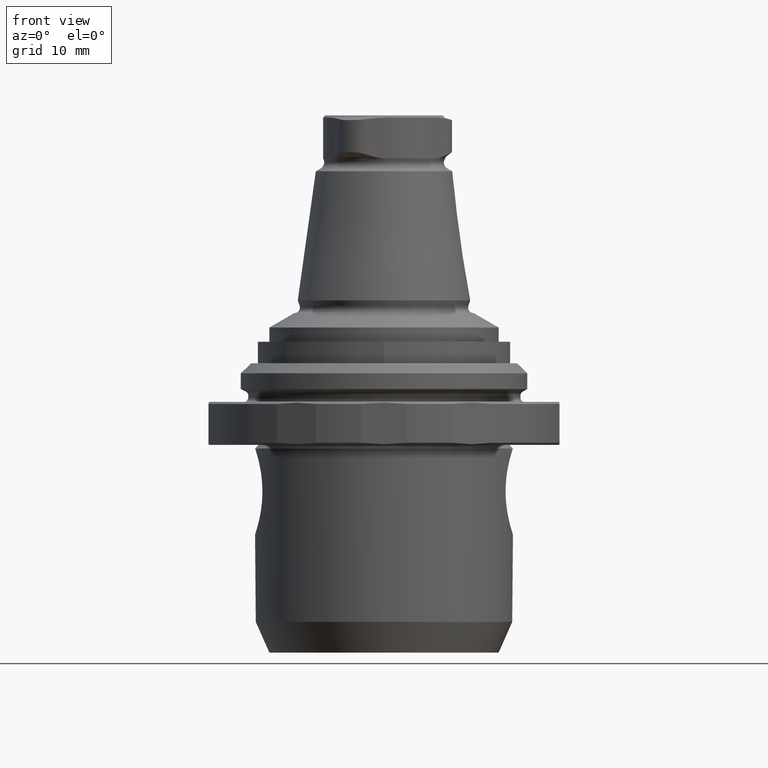
[diagram: clean part render]
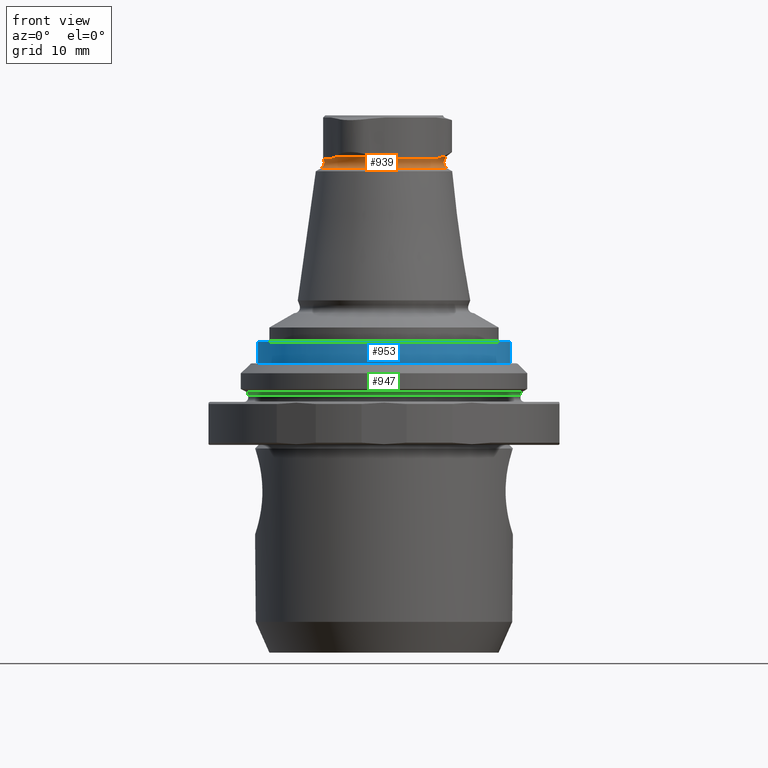
[diagram: same view with three faces highlighted in distinct colors, each labeled with its STEP entity id]
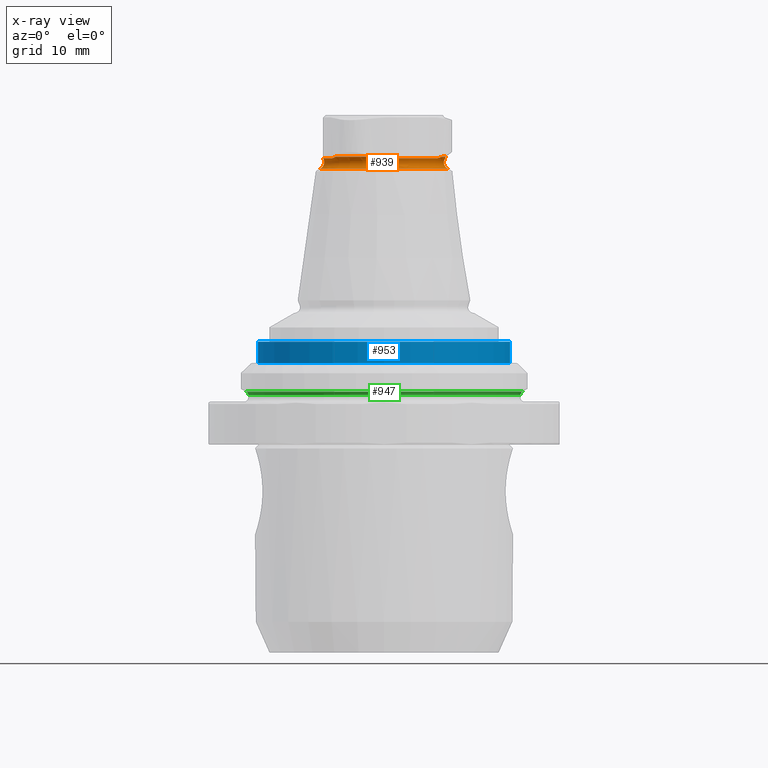
[diagram: x-ray of the same camera — body ghosted, the three highlighted faces saturated]
A machine part, front view with three faces highlighted in distinct colors.
The next image is the same camera in x-ray (body ghosted, the three faces saturated) — at least one of them is partly hidden behind the body in this view.
Their STEP definitions:

[orange] entity #939 — the highlighted toroidal blend (fillet) surface has major radius 9.35 mm and minor (blend) radius 1 mm.
#20=TOROIDAL_SURFACE('',#1040,9.35,1.);
#114=B_SPLINE_CURVE_WITH_KNOTS('',3,(#1562,#1563,#1564,#1565),
 .UNSPECIFIED.,.F.,.F.,(4,4),(8.75717671022028E-7,0.00148854459690247),
 .UNSPECIFIED.);
#116=B_SPLINE_CURVE_WITH_KNOTS('',3,(#1576,#1577,#1578,#1579),
 .UNSPECIFIED.,.F.,.F.,(4,4),(1.97091367671807E-7,0.00148786597047923),
 .UNSPECIFIED.);
#118=B_SPLINE_CURVE_WITH_KNOTS('',3,(#1590,#1591,#1592,#1593),
 .UNSPECIFIED.,.F.,.F.,(4,4),(8.75717646699766E-7,0.00148854459689308),
 .UNSPECIFIED.);
#120=B_SPLINE_CURVE_WITH_KNOTS('',3,(#1604,#1605,#1606,#1607),
 .UNSPECIFIED.,.F.,.F.,(4,4),(2.29036980225932E-7,0.00148789791622652),
 .UNSPECIFIED.);
#122=B_SPLINE_CURVE_WITH_KNOTS('',3,(#1618,#1619,#1620,#1621),
 .UNSPECIFIED.,.F.,.F.,(4,4),(8.75717915843446E-7,0.00148854459702719),
 .UNSPECIFIED.);
#124=B_SPLINE_CURVE_WITH_KNOTS('',3,(#1632,#1633,#1634,#1635),
 .UNSPECIFIED.,.F.,.F.,(4,4),(2.26144285588454E-7,0.00148789502351704),
 .UNSPECIFIED.);
#275=ORIENTED_EDGE('',*,*,#485,.F.);
#276=ORIENTED_EDGE('',*,*,#484,.T.);
#277=ORIENTED_EDGE('',*,*,#483,.T.);
#278=ORIENTED_EDGE('',*,*,#480,.T.);
#279=ORIENTED_EDGE('',*,*,#479,.T.);
#280=ORIENTED_EDGE('',*,*,#477,.T.);
#281=ORIENTED_EDGE('',*,*,#475,.T.);
#282=ORIENTED_EDGE('',*,*,#472,.T.);
#283=ORIENTED_EDGE('',*,*,#471,.T.);
#284=ORIENTED_EDGE('',*,*,#469,.T.);
#285=ORIENTED_EDGE('',*,*,#467,.T.);
#286=ORIENTED_EDGE('',*,*,#464,.T.);
#287=ORIENTED_EDGE('',*,*,#463,.T.);
#463=EDGE_CURVE('',#581,#582,#114,.T.);
#464=EDGE_CURVE('',#583,#581,#660,.T.);
#467=EDGE_CURVE('',#584,#583,#116,.T.);
#469=EDGE_CURVE('',#585,#584,#661,.T.);
#471=EDGE_CURVE('',#586,#585,#118,.T.);
#472=EDGE_CURVE('',#587,#586,#662,.T.);
#475=EDGE_CURVE('',#588,#587,#120,.T.);
#477=EDGE_CURVE('',#589,#588,#663,.T.);
#479=EDGE_CURVE('',#590,#589,#122,.T.);
#480=EDGE_CURVE('',#591,#590,#664,.T.);
#483=EDGE_CURVE('',#592,#591,#124,.T.);
#484=EDGE_CURVE('',#582,#592,#665,.T.);
#485=EDGE_CURVE('',#593,#593,#666,.T.);
#581=VERTEX_POINT('',#1559);
#582=VERTEX_POINT('',#1561);
#583=VERTEX_POINT('',#1568);
#584=VERTEX_POINT('',#1575);
#585=VERTEX_POINT('',#1582);
#586=VERTEX_POINT('',#1589);
#587=VERTEX_POINT('',#1596);
#588=VERTEX_POINT('',#1603);
#589=VERTEX_POINT('',#1610);
#590=VERTEX_POINT('',#1617);
#591=VERTEX_POINT('',#1624);
#592=VERTEX_POINT('',#1631);
#593=VERTEX_POINT('',#1640);
#660=CIRCLE('',#1024,8.70721239031346);
#661=CIRCLE('',#1027,8.5);
#662=CIRCLE('',#1030,8.70721239031346);
#663=CIRCLE('',#1033,8.5);
#664=CIRCLE('',#1036,8.70721239031346);
#665=CIRCLE('',#1039,8.5);
#666=CIRCLE('',#1041,8.85);
#737=EDGE_LOOP('',(#275));
#738=EDGE_LOOP('',(#276,#277,#278,#279,#280,#281,#282,#283,#284,#285,#286,
#287));
#833=FACE_BOUND('',#737,.T.);
#834=FACE_BOUND('',#738,.T.);
#939=ADVANCED_FACE('',(#833,#834),#20,.F.);
#1024=AXIS2_PLACEMENT_3D('',#1567,#1190,#1191);
#1027=AXIS2_PLACEMENT_3D('',#1583,#1198,#1199);
#1030=AXIS2_PLACEMENT_3D('',#1595,#1204,#1205);
#1033=AXIS2_PLACEMENT_3D('',#1611,#1212,#1213);
#1036=AXIS2_PLACEMENT_3D('',#1623,#1218,#1219);
#1039=AXIS2_PLACEMENT_3D('',#1637,#1225,#1226);
#1040=AXIS2_PLACEMENT_3D('',#1638,#1227,#1228);
#1041=AXIS2_PLACEMENT_3D('',#1639,#1229,#1230);
#1190=DIRECTION('',(1.22464605849178E-16,1.51929083932157E-64,-1.));
#1191=DIRECTION('',(-1.,6.12303176911188E-17,-1.22464605849178E-16));
#1198=DIRECTION('',(1.22464605849178E-16,1.51929083932157E-64,-1.));
#1199=DIRECTION('',(-1.,6.12303176911188E-17,-1.22464605849178E-16));
#1204=DIRECTION('',(1.22464605849178E-16,1.51929083932157E-64,-1.));
#1205=DIRECTION('',(-1.,6.12303176911188E-17,-1.22464605849178E-16));
#1212=DIRECTION('',(1.22464605849178E-16,1.51929083932157E-64,-1.));
#1213=DIRECTION('',(-1.,6.12303176911188E-17,-1.22464605849178E-16));
#1218=DIRECTION('',(1.22464605849178E-16,1.51929083932157E-64,-1.));
#1219=DIRECTION('',(-1.,6.12303176911188E-17,-1.22464605849178E-16));
#1225=DIRECTION('',(1.22464605849178E-16,1.51929083932157E-64,-1.));
#1226=DIRECTION('',(-1.,6.12303176911188E-17,-1.22464605849178E-16));
#1227=DIRECTION('',(1.22464605849178E-16,1.51929083932157E-64,-1.));
#1228=DIRECTION('',(-1.,6.12303176911188E-17,-1.22464605849178E-16));
#1229=DIRECTION('',(1.22464605849178E-16,1.51929083932157E-64,-1.));
#1230=DIRECTION('',(-1.,6.12303176911188E-17,-1.22464605849178E-16));
#1559=CARTESIAN_POINT('',(-6.76089764728869,-5.48687621629234,23.2291441200677));
#1561=CARTESIAN_POINT('',(-7.40758513182767,-4.16865476079823,22.9898823645922));
#1562=CARTESIAN_POINT('',(-6.76089764728869,-5.48687621629234,23.2291441200677));
#1563=CARTESIAN_POINT('',(-6.94947802342285,-5.0403146234025,23.1158866888435));
#1564=CARTESIAN_POINT('',(-7.16078347826903,-4.60721452751429,22.9898823645921));
#1565=CARTESIAN_POINT('',(-7.40758513182809,-4.16865476079844,22.9898823645921));
#1567=CARTESIAN_POINT('',(-2.84474797887784E-15,-3.52918258668994E-63,23.2291441200677));
#1568=CARTESIAN_POINT('',(-1.37132536708762,-8.59854722308427,23.2291441200677));
#1575=CARTESIAN_POINT('',(0.0936316434549361,-8.49948428525774,22.9898823645914));
#1576=CARTESIAN_POINT('',(0.0936316434549253,-8.49948428525774,22.9898823645913));
#1577=CARTESIAN_POINT('',(-0.409573375545691,-8.50502767016708,22.9898823645914));
#1578=CARTESIAN_POINT('',(-0.890301629708681,-8.5385818397919,23.115886720508));
#1579=CARTESIAN_POINT('',(-1.37132536708762,-8.59854722308427,23.2291441200677));
#1582=CARTESIAN_POINT('',(7.31395348837153,-4.33082952445941,22.9898823645906));
#1583=CARTESIAN_POINT('',(-2.81544688229865E-15,-3.49283176736042E-63,22.9898823645914));
#1589=CARTESIAN_POINT('',(8.13222301437539,-3.11167100678903,23.2291441200677));
#1590=CARTESIAN_POINT('',(8.13222301437539,-3.11167100678903,23.2291441200677));
#1591=CARTESIAN_POINT('',(7.83977951050381,-3.49826721038397,23.1158866856902));
#1592=CARTESIAN_POINT('',(7.570356545773,-3.89781316454051,22.9898823645905));
#1593=CARTESIAN_POINT('',(7.31395348837153,-4.33082952445941,22.9898823645906));
#1595=CARTESIAN_POINT('',(-2.84474797887784E-15,-3.52918258668994E-63,23.2291441200677));
#1596=CARTESIAN_POINT('',(8.13222301437534,3.11167100678916,23.2291441200677));
#1603=CARTESIAN_POINT('',(7.31395348837153,4.33082952445948,22.9898823645906));
#1604=CARTESIAN_POINT('',(7.31395348837153,4.33082952445948,22.9898823645906));
#1605=CARTESIAN_POINT('',(7.57035654577298,3.8978131645406,22.9898823645906));
#1606=CARTESIAN_POINT('',(7.83977951050378,3.49826721038408,23.1158866856902));
#1607=CARTESIAN_POINT('',(8.13222301437534,3.11167100678916,23.2291441200677));
#1610=CARTESIAN_POINT('',(0.0936316434549382,8.49948428525717,22.9898823645914));
#1611=CARTESIAN_POINT('',(-2.81544688229865E-15,-3.49283176736042E-63,22.9898823645914));
#1617=CARTESIAN_POINT('',(-1.37132536708737,8.59854722308431,23.2291441200677));
#1618=CARTESIAN_POINT('',(-1.37132536708737,8.59854722308431,23.2291441200677));
#1619=CARTESIAN_POINT('',(-0.890301629708495,8.53858183979196,23.115886720508));
#1620=CARTESIAN_POINT('',(-0.409573375545563,8.50502767016714,22.9898823645915));
#1621=CARTESIAN_POINT('',(0.0936316434549774,8.49948428525781,22.9898823645914));
#1623=CARTESIAN_POINT('',(-2.84474797887784E-15,-3.52918258668994E-63,23.2291441200677));
#1624=CARTESIAN_POINT('',(-6.76089764728876,5.48687621629226,23.2291441200677));
#1631=CARTESIAN_POINT('',(-7.40758513182811,4.16865476079847,22.9898823645914));
#1632=CARTESIAN_POINT('',(-7.40758513182818,4.16865476079836,22.9898823645922));
#1633=CARTESIAN_POINT('',(-7.16078347826911,4.60721452751421,22.9898823645922));
#1634=CARTESIAN_POINT('',(-6.94947802342292,5.04031462340243,23.1158866888435));
#1635=CARTESIAN_POINT('',(-6.76089764728876,5.48687621629227,23.2291441200677));
#1637=CARTESIAN_POINT('',(-2.81544688229865E-15,-3.49283176736042E-63,22.9898823645914));
#1638=CARTESIAN_POINT('',(-2.75093464808833E-15,-3.41279815619555E-63,22.4630996769487));
#1639=CARTESIAN_POINT('',(-2.64487718835849E-15,-3.2812237099366E-63,21.5970742731643));
#1640=CARTESIAN_POINT('',(-8.85,5.41888311566402E-16,21.5970742731643));

[blue] entity #953 — the highlighted cylindrical surface (bore or boss wall) has radius 17.7 mm, axis along (0, -0, -1).
#159=CYLINDRICAL_SURFACE('',#1069,17.7);
#314=ORIENTED_EDGE('',*,*,#500,.T.);
#315=ORIENTED_EDGE('',*,*,#498,.F.);
#498=EDGE_CURVE('',#606,#606,#679,.T.);
#500=EDGE_CURVE('',#608,#608,#681,.T.);
#606=VERTEX_POINT('',#1678);
#608=VERTEX_POINT('',#1684);
#679=CIRCLE('',#1066,17.7);
#681=CIRCLE('',#1070,17.7);
#765=EDGE_LOOP('',(#314));
#766=EDGE_LOOP('',(#315));
#861=FACE_BOUND('',#765,.T.);
#862=FACE_BOUND('',#766,.T.);
#953=ADVANCED_FACE('',(#861,#862),#159,.T.);
#1066=AXIS2_PLACEMENT_3D('',#1677,#1279,#1280);
#1069=AXIS2_PLACEMENT_3D('',#1682,#1285,#1286);
#1070=AXIS2_PLACEMENT_3D('',#1683,#1287,#1288);
#1279=DIRECTION('',(-1.1985897436163E-16,2.28605420901113E-16,1.));
#1280=DIRECTION('',(-6.68722135205411E-17,1.,-2.28605420901114E-16));
#1285=DIRECTION('',(1.1985897436163E-16,-2.28605420901113E-16,-1.));
#1286=DIRECTION('',(1.,6.12343622236165E-17,1.1985897436163E-16));
#1287=DIRECTION('',(-1.1985897436163E-16,2.28605420901113E-16,1.));
#1288=DIRECTION('',(6.68722135205411E-17,-1.,2.28605420901114E-16));
#1677=CARTESIAN_POINT('',(5.49600075093802E-16,-4.81482486096809E-32,-2.5937822173509));
#1678=CARTESIAN_POINT('',(-6.34038104219775E-16,17.7,-2.5937822173509));
#1682=CARTESIAN_POINT('',(7.29388536636248E-16,-3.4290813135167E-16,-4.0937822173509));
#1683=CARTESIAN_POINT('',(9.09176998178694E-16,-6.8581626270334E-16,-5.5937822173509));
#1684=CARTESIAN_POINT('',(2.09281517749227E-15,-17.7,-5.59378221735089));

[green] entity #947 — the highlighted toroidal blend (fillet) surface has major radius 19.65 mm and minor (blend) radius 0.6 mm.
#22=TOROIDAL_SURFACE('',#1057,19.65,0.6);
#302=ORIENTED_EDGE('',*,*,#493,.F.);
#303=ORIENTED_EDGE('',*,*,#494,.T.);
#493=EDGE_CURVE('',#601,#601,#674,.T.);
#494=EDGE_CURVE('',#602,#602,#675,.T.);
#601=VERTEX_POINT('',#1663);
#602=VERTEX_POINT('',#1666);
#674=CIRCLE('',#1056,19.05);
#675=CIRCLE('',#1058,19.35);
#753=EDGE_LOOP('',(#302));
#754=EDGE_LOOP('',(#303));
#849=FACE_BOUND('',#753,.T.);
#850=FACE_BOUND('',#754,.T.);
#947=ADVANCED_FACE('',(#849,#850),#22,.F.);
#1056=AXIS2_PLACEMENT_3D('',#1662,#1259,#1260);
#1057=AXIS2_PLACEMENT_3D('',#1664,#1261,#1262);
#1058=AXIS2_PLACEMENT_3D('',#1665,#1263,#1264);
#1259=DIRECTION('',(1.1985897436163E-16,5.68031218956752E-33,-1.));
#1260=DIRECTION('',(1.,-2.71836589696428E-16,1.1985897436163E-16));
#1261=DIRECTION('',(1.1985897436163E-16,5.68031218956752E-33,-1.));
#1262=DIRECTION('',(1.,-2.71836589696428E-16,1.1985897436163E-16));
#1263=DIRECTION('',(1.1985897436163E-16,5.68031218956752E-33,-1.));
#1264=DIRECTION('',(1.,-2.71836589696428E-16,1.1985897436163E-16));
#1662=CARTESIAN_POINT('',(1.44793025310491E-15,2.37126054819603E-32,-10.0886751345948));
#1663=CARTESIAN_POINT('',(19.05,-5.17848703371696E-15,-10.0886751345948));
#1664=CARTESIAN_POINT('',(1.44793025310491E-15,2.37126054819603E-32,-10.0886751345948));
#1665=CARTESIAN_POINT('',(1.38564970310368E-15,2.07610286874051E-32,-9.56905989232416));
#1666=CARTESIAN_POINT('',(19.35,-5.26003801062588E-15,-9.56905989232416));